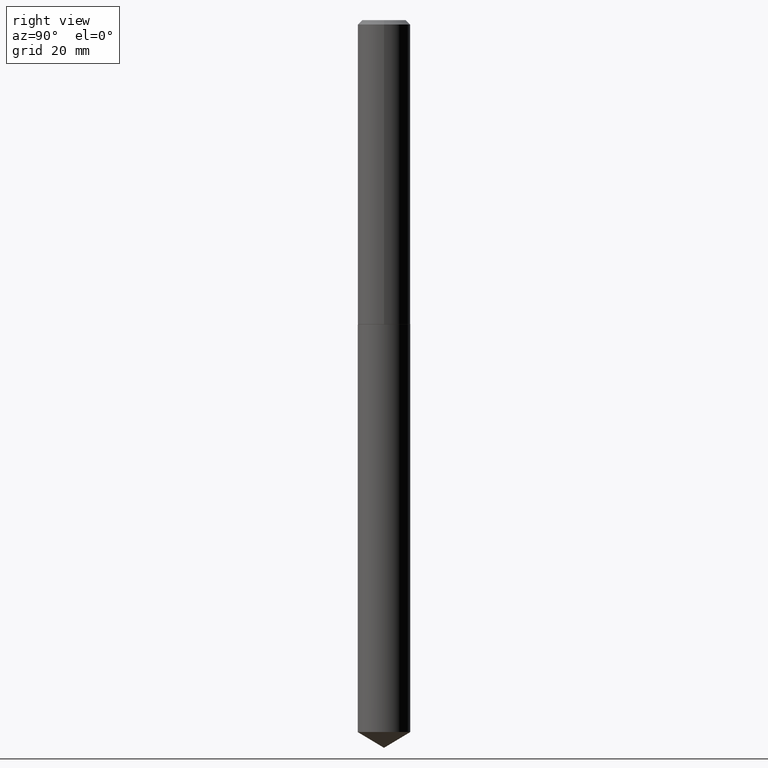
[diagram: clean part render]
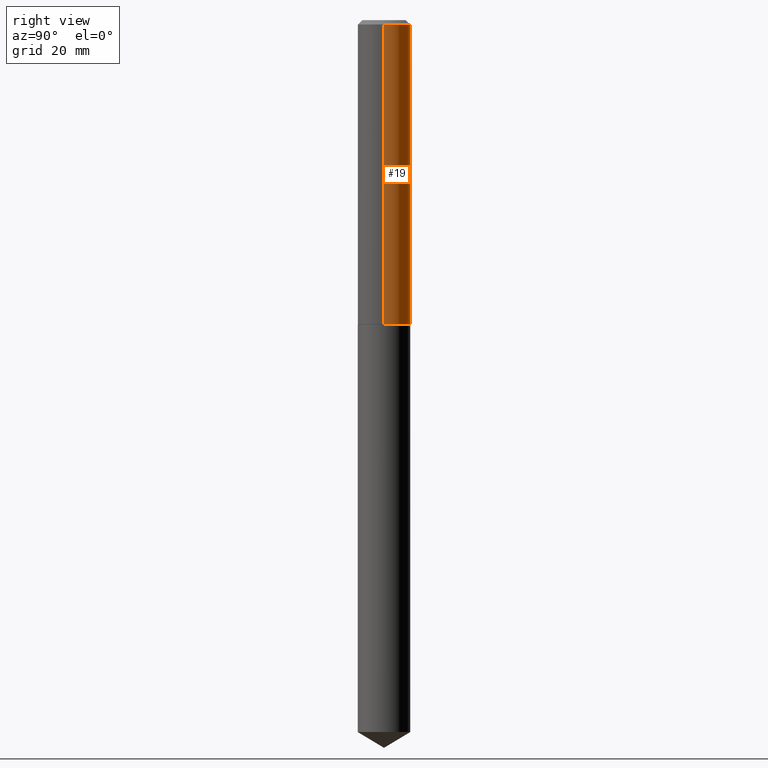
[diagram: same view with one face highlighted and labeled with its STEP entity id]
A machine part, right view. The second image highlights one B-rep face of the part: STEP entity #19.
In plain terms, the highlighted cylindrical surface (edge-blend (fillet) strip) has radius 4.8006 mm, axis along (-0, 0, 1).
Its self-contained STEP definition (entity closure, byte-faithful):
#1 = DIRECTION ( 'NONE',  ( 1.000000000000000000, -6.982962677686266711E-15, 0.000000000000000000 ) ) ;
#2 = ORIENTED_EDGE ( 'NONE', *, *, #339, .F. ) ;
#11 = DIRECTION ( 'NONE',  ( -2.445468806185136877E-29, 3.491481338843145188E-15, 1.000000000000000000 ) ) ;
#19 = ADVANCED_FACE ( 'NONE', ( #366 ), #167, .T. ) ;
#26 = VECTOR ( 'NONE', #307, 39.37007874015748143 ) ;
#28 = CARTESIAN_POINT ( 'NONE',  ( -0.1889999999999999736, -2.532182080361946817E-15, -0.03125000000000020817 ) ) ;
#49 = VECTOR ( 'NONE', #11, 39.37007874015748143 ) ;
#53 = EDGE_CURVE ( 'NONE', #387, #354, #226, .T. ) ;
#98 = DIRECTION ( 'NONE',  ( 1.000000000000000000, -6.982962677686266711E-15, 4.876176775795936353E-29 ) ) ;
#100 = DIRECTION ( 'NONE',  ( -2.445468806185136597E-29, 3.491481338843145583E-15, 1.000000000000000000 ) ) ;
#106 = AXIS2_PLACEMENT_3D ( 'NONE', #131, #100, #98 ) ;
#120 = DIRECTION ( 'NONE',  ( -2.445468806185136597E-29, 3.491481338843145583E-15, 1.000000000000000000 ) ) ;
#131 = CARTESIAN_POINT ( 'NONE',  ( 0.000000000000000000, 0.000000000000000000, 0.000000000000000000 ) ) ;
#143 = AXIS2_PLACEMENT_3D ( 'NONE', #356, #120, #276 ) ;
#144 = CARTESIAN_POINT ( 'NONE',  ( 0.1890000000000002511, -8.960886856140933595E-15, -2.188500000000000778 ) ) ;
#146 = LINE ( 'NONE', #184, #26 ) ;
#161 = CIRCLE ( 'NONE', #143, 0.1890000000000002511 ) ;
#167 = CYLINDRICAL_SURFACE ( 'NONE', #106, 0.1890000000000001124 ) ;
#169 = VERTEX_POINT ( 'NONE', #379 ) ;
#179 = DIRECTION ( 'NONE',  ( -2.445468806185136597E-29, 3.491481338843145583E-15, 1.000000000000000000 ) ) ;
#182 = CARTESIAN_POINT ( 'NONE',  ( 7.642090019328602662E-31, -1.091087918388490267E-16, -0.03125000000000020817 ) ) ;
#184 = CARTESIAN_POINT ( 'NONE',  ( 0.1890000000000001124, -1.319779946082705213E-15, 9.215974106254324926E-30 ) ) ;
#202 = ORIENTED_EDGE ( 'NONE', *, *, #383, .T. ) ;
#226 = LINE ( 'NONE', #287, #49 ) ;
#231 = VERTEX_POINT ( 'NONE', #144 ) ;
#241 = ORIENTED_EDGE ( 'NONE', *, *, #335, .F. ) ;
#250 = CIRCLE ( 'NONE', #301, 0.1889999999999999736 ) ;
#253 = ORIENTED_EDGE ( 'NONE', *, *, #53, .T. ) ;
#276 = DIRECTION ( 'NONE',  ( 1.000000000000000000, -6.982962677686272233E-15, 0.000000000000000000 ) ) ;
#287 = CARTESIAN_POINT ( 'NONE',  ( -0.1890000000000001124, 1.342925770586590150E-15, -9.296787320581778267E-30 ) ) ;
#301 = AXIS2_PLACEMENT_3D ( 'NONE', #182, #179, #1 ) ;
#307 = DIRECTION ( 'NONE',  ( -2.445468806185136877E-29, 3.491481338843145188E-15, 1.000000000000000000 ) ) ;
#315 = EDGE_LOOP ( 'NONE', ( #202, #253, #2, #241 ) ) ;
#335 = EDGE_CURVE ( 'NONE', #231, #169, #146, .T. ) ;
#339 = EDGE_CURVE ( 'NONE', #169, #354, #250, .T. ) ;
#354 = VERTEX_POINT ( 'NONE', #28 ) ;
#356 = CARTESIAN_POINT ( 'NONE',  ( 5.351908482336173029E-29, -7.641106910058226410E-15, -2.188500000000000778 ) ) ;
#363 = CARTESIAN_POINT ( 'NONE',  ( -0.1890000000000002511, -6.298181139471635866E-15, -2.188500000000000778 ) ) ;
#366 = FACE_OUTER_BOUND ( 'NONE', #315, .T. ) ;
#379 = CARTESIAN_POINT ( 'NONE',  ( 0.1889999999999999736, -1.428888737921553328E-15, -0.03125000000000020817 ) ) ;
#383 = EDGE_CURVE ( 'NONE', #231, #387, #161, .T. ) ;
#387 = VERTEX_POINT ( 'NONE', #363 ) ;